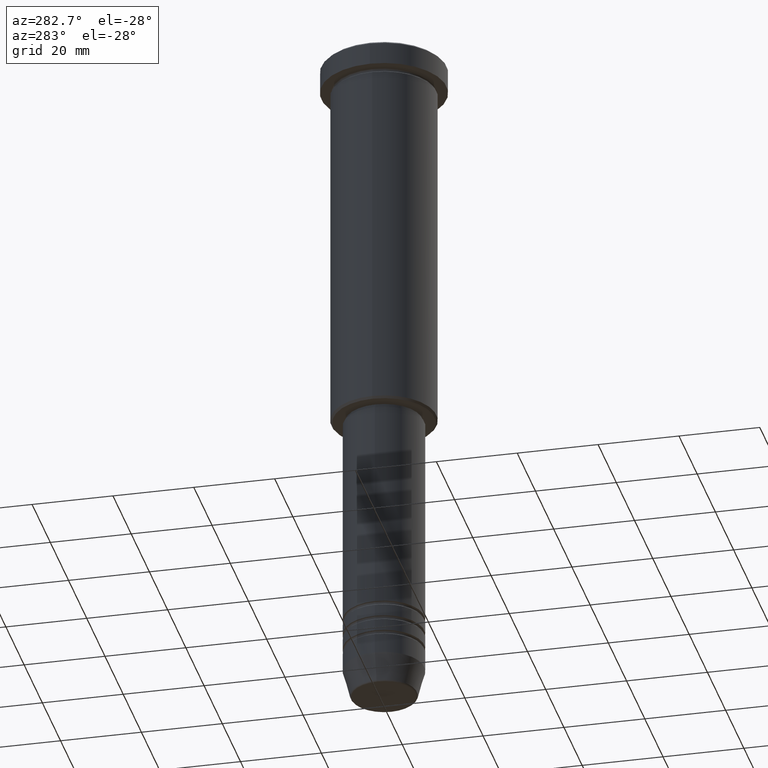
[diagram: clean part render]
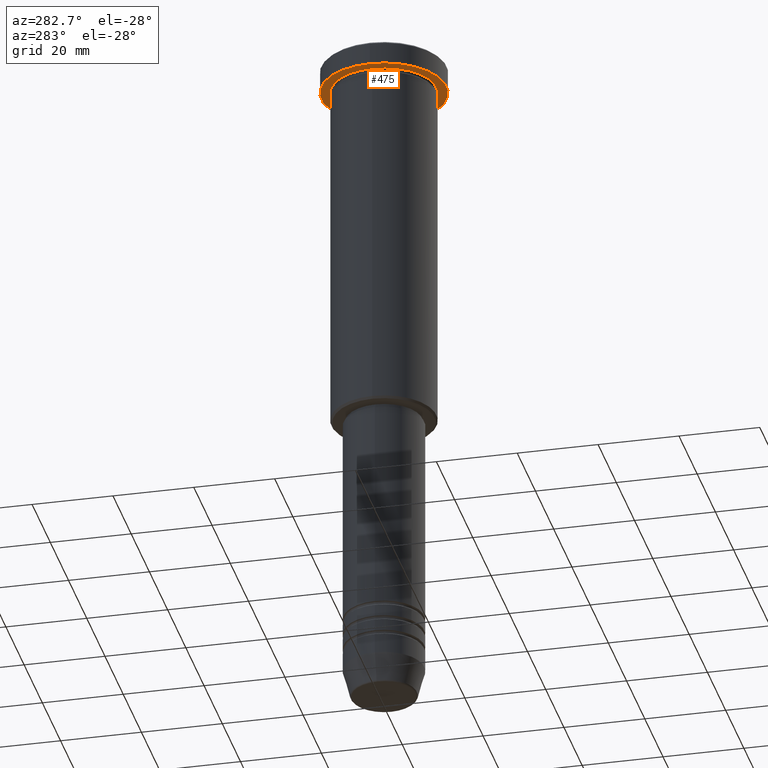
[diagram: same view with one face highlighted and labeled with its STEP entity id]
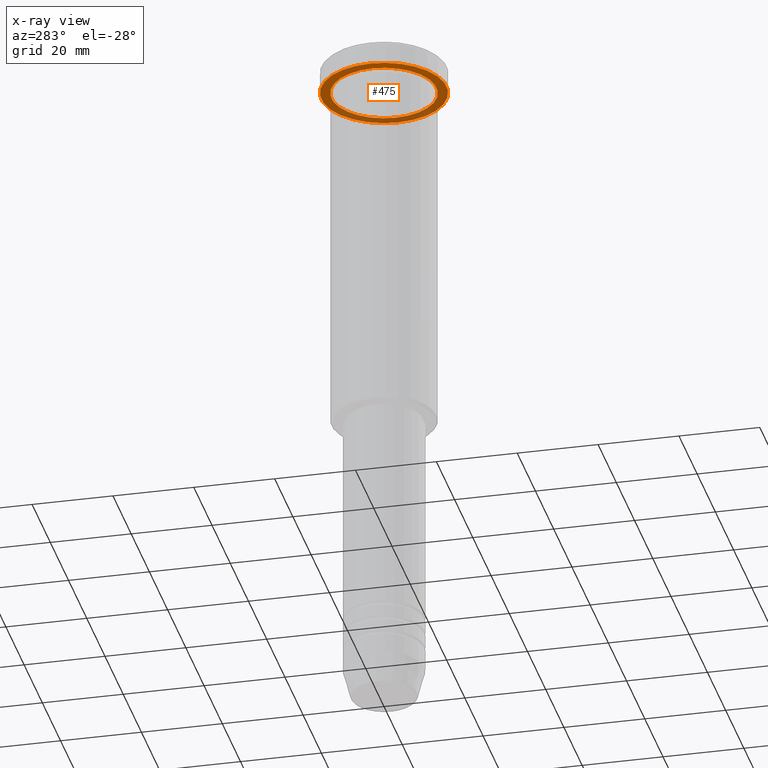
[diagram: x-ray of the same camera — body ghosted, the highlighted face saturated]
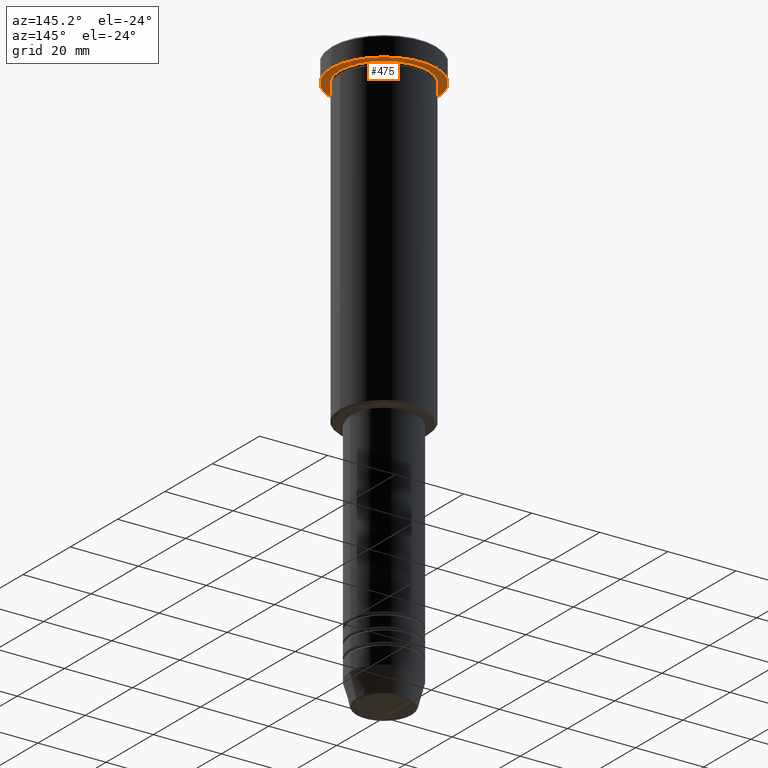
[diagram: same view with one face highlighted and labeled with its STEP entity id]
A machine part, auxiliary view. The second image highlights one B-rep face of the part: STEP entity #475.
The next image is the same camera in x-ray: the body ghosted, the highlighted face saturated — about 29% of this face is hidden behind the body in this view.
A second angle (auxiliary view) of the same face is appended — the face is thin or edge-on in the first view.
In plain terms, the highlighted planar face has unit normal (0, 0, -1).
Its self-contained STEP definition (entity closure, byte-faithful):
#20 = ORIENTED_EDGE ( 'NONE', *, *, #479, .F. ) ;
#24 = ORIENTED_EDGE ( 'NONE', *, *, #100, .F. ) ;
#35 = AXIS2_PLACEMENT_3D ( 'NONE', #789, #424, #1148 ) ;
#98 = FACE_OUTER_BOUND ( 'NONE', #759, .T. ) ;
#100 = EDGE_CURVE ( 'NONE', #608, #778, #347, .T. ) ;
#168 = CARTESIAN_POINT ( 'NONE',  ( 0.000000000000000000, 0.000000000000000000, -5.999999999999995559 ) ) ;
#176 = ORIENTED_EDGE ( 'NONE', *, *, #677, .T. ) ;
#190 = AXIS2_PLACEMENT_3D ( 'NONE', #168, #637, #632 ) ;
#202 = EDGE_LOOP ( 'NONE', ( #502, #176 ) ) ;
#241 = VERTEX_POINT ( 'NONE', #1129 ) ;
#261 = DIRECTION ( 'NONE',  ( -0.000000000000000000, -0.000000000000000000, 1.000000000000000000 ) ) ;
#312 = EDGE_CURVE ( 'NONE', #1124, #241, #408, .T. ) ;
#313 = CARTESIAN_POINT ( 'NONE',  ( -15.50000000000000000, 1.898202538678397557E-15, -5.999999999999995559 ) ) ;
#347 = CIRCLE ( 'NONE', #190, 15.50000000000000000 ) ;
#396 = DIRECTION ( 'NONE',  ( -1.000000000000000000, 0.000000000000000000, -0.000000000000000000 ) ) ;
#404 = CIRCLE ( 'NONE', #35, 13.00000000000000000 ) ;
#408 = CIRCLE ( 'NONE', #697, 13.00000000000000000 ) ;
#424 = DIRECTION ( 'NONE',  ( -0.000000000000000000, -0.000000000000000000, 1.000000000000000000 ) ) ;
#447 = AXIS2_PLACEMENT_3D ( 'NONE', #838, #934, #651 ) ;
#475 = ADVANCED_FACE ( 'NONE', ( #489, #98 ), #476, .T. ) ;
#476 = PLANE ( 'NONE',  #1018 ) ;
#479 = EDGE_CURVE ( 'NONE', #778, #608, #906, .T. ) ;
#489 = FACE_BOUND ( 'NONE', #202, .T. ) ;
#502 = ORIENTED_EDGE ( 'NONE', *, *, #312, .T. ) ;
#573 = DIRECTION ( 'NONE',  ( 0.000000000000000000, 0.000000000000000000, -1.000000000000000000 ) ) ;
#608 = VERTEX_POINT ( 'NONE', #313 ) ;
#626 = CARTESIAN_POINT ( 'NONE',  ( 0.000000000000000000, 0.000000000000000000, -5.999999999999995559 ) ) ;
#632 = DIRECTION ( 'NONE',  ( 1.000000000000000000, 0.000000000000000000, 0.000000000000000000 ) ) ;
#637 = DIRECTION ( 'NONE',  ( -0.000000000000000000, -0.000000000000000000, 1.000000000000000000 ) ) ;
#651 = DIRECTION ( 'NONE',  ( 1.000000000000000000, 0.000000000000000000, 0.000000000000000000 ) ) ;
#677 = EDGE_CURVE ( 'NONE', #241, #1124, #404, .T. ) ;
#697 = AXIS2_PLACEMENT_3D ( 'NONE', #626, #261, #725 ) ;
#725 = DIRECTION ( 'NONE',  ( -1.000000000000000000, 0.000000000000000000, 0.000000000000000000 ) ) ;
#757 = CARTESIAN_POINT ( 'NONE',  ( 0.000000000000000000, 15.50000000000000000, -5.999999999999995559 ) ) ;
#759 = EDGE_LOOP ( 'NONE', ( #20, #24 ) ) ;
#768 = CARTESIAN_POINT ( 'NONE',  ( -13.00000000000000000, 0.000000000000000000, -5.999999999999994671 ) ) ;
#778 = VERTEX_POINT ( 'NONE', #1157 ) ;
#789 = CARTESIAN_POINT ( 'NONE',  ( 0.000000000000000000, 0.000000000000000000, -5.999999999999995559 ) ) ;
#838 = CARTESIAN_POINT ( 'NONE',  ( 0.000000000000000000, 0.000000000000000000, -5.999999999999995559 ) ) ;
#906 = CIRCLE ( 'NONE', #447, 15.50000000000000000 ) ;
#934 = DIRECTION ( 'NONE',  ( -0.000000000000000000, -0.000000000000000000, 1.000000000000000000 ) ) ;
#1018 = AXIS2_PLACEMENT_3D ( 'NONE', #757, #573, #396 ) ;
#1124 = VERTEX_POINT ( 'NONE', #768 ) ;
#1129 = CARTESIAN_POINT ( 'NONE',  ( 13.00000000000000000, 1.592040838891559095E-15, -5.999999999999994671 ) ) ;
#1148 = DIRECTION ( 'NONE',  ( -1.000000000000000000, 0.000000000000000000, 0.000000000000000000 ) ) ;
#1157 = CARTESIAN_POINT ( 'NONE',  ( 15.50000000000000000, 0.000000000000000000, -5.999999999999995559 ) ) ;